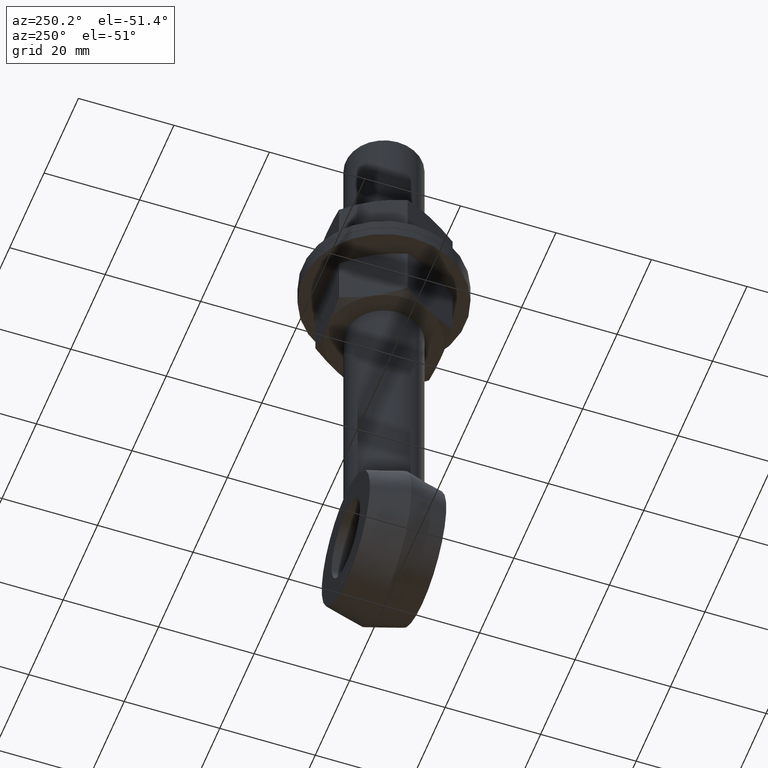
[diagram: clean part render]
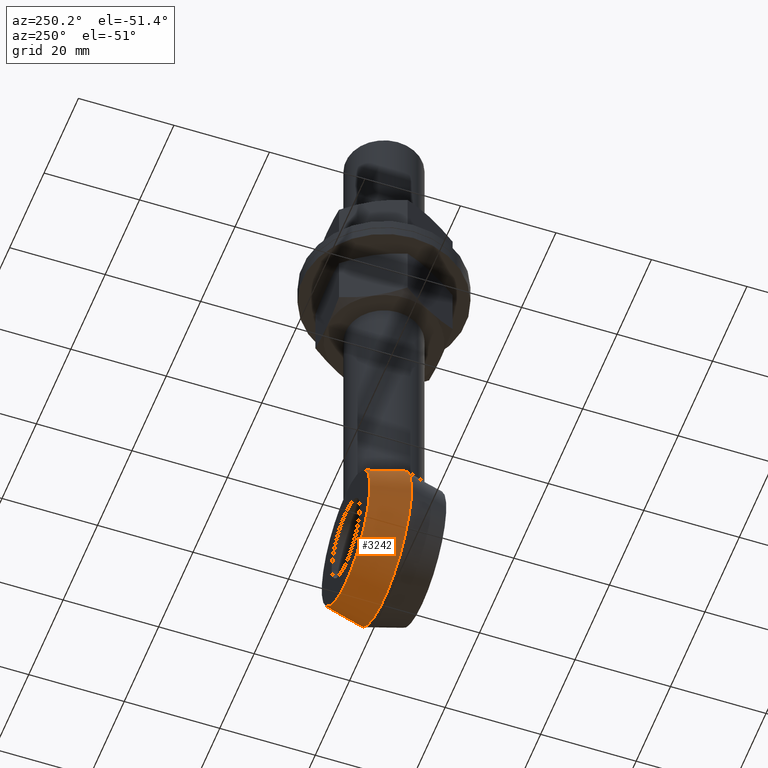
[diagram: same view with one face highlighted and labeled with its STEP entity id]
A machine part, auxiliary view. The second image highlights one B-rep face of the part: STEP entity #3242.
In plain terms, the highlighted conical surface has half-angle 14.036 deg.
Its self-contained STEP definition (entity closure, byte-faithful):
#83 = CARTESIAN_POINT ( 'NONE',  ( 4.672629499833451661, 6.498872145990299387, -46.40358584107910644 ) ) ;
#100 = CIRCLE ( 'NONE', #6156, 13.99999999999999822 ) ;
#161 = CARTESIAN_POINT ( 'NONE',  ( 1.053568919362023015, 7.947631169145863872, -46.01710330969467577 ) ) ;
#333 = EDGE_CURVE ( 'NONE', #3383, #3353, #3903, .T. ) ;
#470 = CARTESIAN_POINT ( 'NONE',  ( -6.956787808347909774, 3.985607949157346841, -46.70391942969244070 ) ) ;
#488 = DIRECTION ( 'NONE',  ( -0.000000000000000000, 1.000000000000000000, -0.000000000000000000 ) ) ;
#489 = CARTESIAN_POINT ( 'NONE',  ( 3.769746804327677471E-15, 7.999999999999998224, -46.00000000000000000 ) ) ;
#587 = CARTESIAN_POINT ( 'NONE',  ( 0.5311507254782829035, 8.000000000000000000, -46.00000000000000711 ) ) ;
#626 = CARTESIAN_POINT ( 'NONE',  ( 7.587233725661400641, 2.550147896114320023, -46.64179044607067937 ) ) ;
#882 = DIRECTION ( 'NONE',  ( 0.000000000000000000, 0.000000000000000000, 1.000000000000000000 ) ) ;
#926 = CARTESIAN_POINT ( 'NONE',  ( -6.368982535474217777, 4.870115891597321500, -46.65712875931989601 ) ) ;
#937 = DIRECTION ( 'NONE',  ( -0.000000000000000000, 1.000000000000000000, -0.000000000000000000 ) ) ;
#950 = CARTESIAN_POINT ( 'NONE',  ( -3.559516607499972896, 7.183748590141200374, -46.24058701931257787 ) ) ;
#964 = CARTESIAN_POINT ( 'NONE',  ( -7.999999999999998224, 0.5111825544353236772, -46.29115923215309891 ) ) ;
#971 = CARTESIAN_POINT ( 'NONE',  ( -2.581407963970466124, 7.576630926828364920, -46.13008939256253882 ) ) ;
#993 = CARTESIAN_POINT ( 'NONE',  ( -0.5309884810981198022, 8.000000000000005329, -46.00000000000001421 ) ) ;
#1036 = DIRECTION ( 'NONE',  ( 0.000000000000000000, 0.000000000000000000, -1.000000000000000000 ) ) ;
#1057 = CARTESIAN_POINT ( 'NONE',  ( 8.000000000000003553, 0.5116515334434743600, -46.29129461473142015 ) ) ;
#1101 = CARTESIAN_POINT ( 'NONE',  ( 7.738537598111692617, 2.045582005807094372, -46.58305127738711349 ) ) ;
#1438 = CARTESIAN_POINT ( 'NONE',  ( -5.296677424045364013, 6.018233466242275398, -46.50207410234974503 ) ) ;
#1456 = CARTESIAN_POINT ( 'NONE',  ( -2.078817070181086635, 7.729652182766437285, -46.08458324222557678 ) ) ;
#1507 = CARTESIAN_POINT ( 'NONE',  ( 7.801796905248401970, 1.788755527101369536, -46.54554640850209069 ) ) ;
#1545 = CARTESIAN_POINT ( 'NONE',  ( 3.559663501039140421, 7.183536599615644391, -46.24063431415657277 ) ) ;
#1815 = CARTESIAN_POINT ( 'NONE',  ( 8.000000000000003553, 0.000000000000000000, -46.14359353944897180 ) ) ;
#1846 = CARTESIAN_POINT ( 'NONE',  ( 0.000000000000000000, 0.000000000000000000, -60.00000000000000000 ) ) ;
#2049 = ORIENTED_EDGE ( 'NONE', *, *, #333, .T. ) ;
#2071 = CARTESIAN_POINT ( 'NONE',  ( 8.000000000000003553, 0.000000000000000000, -46.14359353944897180 ) ) ;
#2340 = CARTESIAN_POINT ( 'NONE',  ( -6.035628685466995158, 5.276846800861127562, -46.61240504800566242 ) ) ;
#2365 = CARTESIAN_POINT ( 'NONE',  ( -1.055941467796955191, 7.947223302212572449, -46.01723143556848328 ) ) ;
#2374 = DIRECTION ( 'NONE',  ( 0.000000000000000000, 0.000000000000000000, 1.000000000000000000 ) ) ;
#2469 = CARTESIAN_POINT ( 'NONE',  ( 2.592540083375024729, 7.586378466352804217, -46.12847446892061498 ) ) ;
#2479 = EDGE_CURVE ( 'NONE', #3353, #4546, #5971, .T. ) ;
#2480 = CIRCLE ( 'NONE', #5785, 16.00000000000001421 ) ;
#2508 = CARTESIAN_POINT ( 'NONE',  ( 6.368474160583242671, 4.870760742901215856, -46.65706529437814254 ) ) ;
#2679 = EDGE_CURVE ( 'NONE', #4546, #3383, #2480, .T. ) ;
#2704 = ORIENTED_EDGE ( 'NONE', *, *, #2679, .T. ) ;
#2825 = CARTESIAN_POINT ( 'NONE',  ( -7.202574841644555192, 3.521152928238088453, -46.70510136377198762 ) ) ;
#2916 = CARTESIAN_POINT ( 'NONE',  ( 4.018996360935618739, 6.937066433396434917, -46.30519554626165046 ) ) ;
#2935 = ORIENTED_EDGE ( 'NONE', *, *, #2479, .T. ) ;
#2954 = CARTESIAN_POINT ( 'NONE',  ( 2.081760721982809592, 7.742165134187859010, -46.08095098862938954 ) ) ;
#3242 = ADVANCED_FACE ( 'NONE', ( #5218 ), #4610, .T. ) ;
#3254 = CARTESIAN_POINT ( 'NONE',  ( 0.000000000000000000, 7.999999999999998224, -60.00000000000000000 ) ) ;
#3310 = CARTESIAN_POINT ( 'NONE',  ( 0.000000000000000000, 7.999999999999998224, -60.00000000000000000 ) ) ;
#3353 = VERTEX_POINT ( 'NONE', #5380 ) ;
#3382 = CARTESIAN_POINT ( 'NONE',  ( 4.885161968591400949, 6.340651876630857053, -46.43670839117636717 ) ) ;
#3383 = VERTEX_POINT ( 'NONE', #5464 ) ;
#3445 = CARTESIAN_POINT ( 'NONE',  ( 7.499597944784786918, 2.797220707477797497, -46.66306993915021906 ) ) ;
#3596 = EDGE_LOOP ( 'NONE', ( #2935, #2704, #2049, #5062 ) ) ;
#3728 = DIRECTION ( 'NONE',  ( 0.000000000000000000, -1.000000000000000000, 0.000000000000000000 ) ) ;
#3749 = CARTESIAN_POINT ( 'NONE',  ( -7.600958879076465280, 2.549711044828303574, -46.64860381599772410 ) ) ;
#3793 = CARTESIAN_POINT ( 'NONE',  ( -7.999999999999996447, 3.458686130082395050E-16, -46.14359353944896469 ) ) ;
#3825 = CARTESIAN_POINT ( 'NONE',  ( -4.018459475130494063, 6.937191852186678886, -46.30513153577354757 ) ) ;
#3871 = CARTESIAN_POINT ( 'NONE',  ( 7.201502270027909880, 3.523069277467282934, -46.70506845638958993 ) ) ;
#3888 = CARTESIAN_POINT ( 'NONE',  ( 6.034851535677972834, 5.277549672256823143, -46.61228359856082903 ) ) ;
#3903 = B_SPLINE_CURVE_WITH_KNOTS ( 'NONE', 3,
 ( #3793, #964, #4243, #4740, #3749, #2825, #470, #926, #2340, #1438, #5184, #3825, #950, #4723, #971, #1456, #4270, #2365, #993, #489 ),
 .UNSPECIFIED., .F., .F.,
 ( 4, 2, 2, 2, 2, 2, 2, 2, 2, 4 ),
 ( 2.053501999349743990E-07, 0.001574777557771175462, 0.003149349765342416251, 0.004723921972913656606, 0.006298494180484896961, 0.007873066388056137316, 0.009447638595627378538, 0.01023492469941299741, 0.01102221080319861629, 0.01259678301076985404 ),
 .UNSPECIFIED. ) ;
#3926 = CARTESIAN_POINT ( 'NONE',  ( 5.289646605668502310, 6.007354864425263230, -46.49976002063116454 ) ) ;
#4243 = CARTESIAN_POINT ( 'NONE',  ( -7.951474976751572221, 1.020923285175577178, -46.41053895534364671 ) ) ;
#4270 = CARTESIAN_POINT ( 'NONE',  ( -1.824989893006004893, 7.793443047850342253, -46.06501590595965467 ) ) ;
#4546 = VERTEX_POINT ( 'NONE', #1815 ) ;
#4610 = CONICAL_SURFACE ( 'NONE', #4655, 13.99999999999999822, 0.2449786631268660309 ) ;
#4631 = EDGE_CURVE ( 'NONE', #3353, #3353, #100, .T. ) ;
#4655 = AXIS2_PLACEMENT_3D ( 'NONE', #3254, #3728, #1036 ) ;
#4723 = CARTESIAN_POINT ( 'NONE',  ( -2.831455103821336028, 7.486785863533163443, -46.15619729333621990 ) ) ;
#4740 = CARTESIAN_POINT ( 'NONE',  ( -7.753463443119792409, 2.037656324389636175, -46.58941813169490587 ) ) ;
#4817 = CARTESIAN_POINT ( 'NONE',  ( 7.951395519887904939, 1.022758247203759518, -46.41102243249861914 ) ) ;
#4861 = CARTESIAN_POINT ( 'NONE',  ( 5.482684217106442048, 5.831651967984302409, -46.52984900773621035 ) ) ;
#5062 = ORIENTED_EDGE ( 'NONE', *, *, #4631, .F. ) ;
#5184 = CARTESIAN_POINT ( 'NONE',  ( -4.886099879437687754, 6.355995226199457449, -46.43570246697691317 ) ) ;
#5218 = FACE_OUTER_BOUND ( 'NONE', #3596, .T. ) ;
#5380 = CARTESIAN_POINT ( 'NONE',  ( 3.769746804327677471E-15, 7.999999999999998224, -46.00000000000000000 ) ) ;
#5464 = CARTESIAN_POINT ( 'NONE',  ( -7.999999999999996447, 3.458686130082395050E-16, -46.14359353944896469 ) ) ;
#5785 = AXIS2_PLACEMENT_3D ( 'NONE', #1846, #937, #2374 ) ;
#5799 = CARTESIAN_POINT ( 'NONE',  ( 3.769746804327677471E-15, 7.999999999999998224, -46.00000000000000000 ) ) ;
#5824 = CARTESIAN_POINT ( 'NONE',  ( 6.956187848482485947, 3.986630653224429111, -46.70389462526870261 ) ) ;
#5971 = B_SPLINE_CURVE_WITH_KNOTS ( 'NONE', 3,
 ( #5799, #587, #161, #2954, #2469, #1545, #2916, #83, #3382, #3926, #4861, #3888, #2508, #5824, #3871, #3445, #626, #1101, #1507, #4817, #1057, #2071 ),
 .UNSPECIFIED., .F., .F.,
 ( 4, 2, 2, 2, 2, 2, 2, 2, 2, 2, 4 ),
 ( 0.01259678301076985404, 0.01417183633139893970, 0.01574688965202802535, 0.01732194297265711447, 0.01810946963297165729, 0.01889699629328620012, 0.02047204961391528924, 0.02204710293454437836, 0.02283462959485892119, 0.02362215625517346748, 0.02519720957580256007 ),
 .UNSPECIFIED. ) ;
#6156 = AXIS2_PLACEMENT_3D ( 'NONE', #3310, #488, #882 ) ;